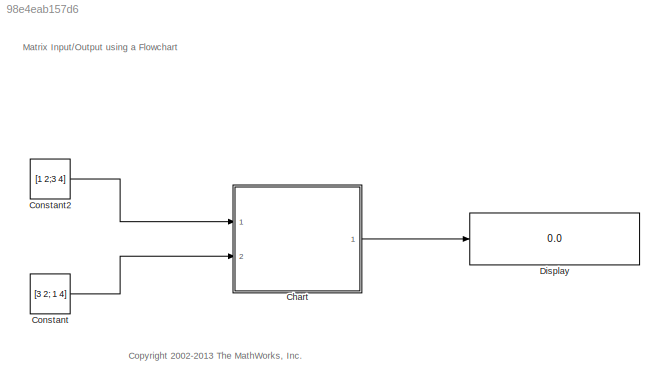
MODEL slx_98e4eab157d6
KIND model
CONFIG AbsTol = auto
CONFIG EnableMultiTasking = on
CONFIG FixedStep = auto
CONFIG MaxStep = 1
CONFIG MinStep = auto
CONFIG RelTol = 1e-3
CONFIG SampleTimeConstraint = Unconstrained
CONFIG Solver = ode45
CONFIG SolverName = ode45
CONFIG StartTime = 0.0
CONFIG StopTime = 1
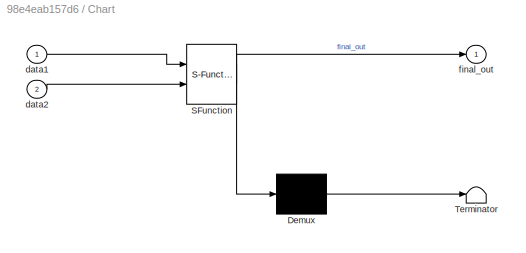
BLOCK [SubSystem] Chart
  ErrorFcn = Stateflow.Translate.translate
  PermitHierarchicalResolution = ExplicitOnly
  Ports = [2, 1]
  RequestExecContextInheritance = off
  SFBlockType = Chart
  TreatAsAtomicUnit = on
  Variant = off
BLOCK [Demux] Chart/ Demux 
  Outputs = 1
  Ports = [1, 1]
BLOCK [S-Function] Chart/ SFunction 
  EnableBusSupport = off
  FunctionName = sf_sfun
  PortCounts = [2 2]
  Ports = [2, 2]
  SFcnIsStateOwnerBlock = off
  SFunctionDeploymentMode = off
  Tag = Stateflow S-Function sf_matrix 1
BLOCK [Terminator] Chart/ Terminator 
BLOCK [Inport] Chart/data1
  IconDisplay = Port number
BLOCK [Inport] Chart/data2
  IconDisplay = Port number
  Port = 2
BLOCK [Outport] Chart/final_out
  IconDisplay = Port number
BLOCK [Constant] Constant
  Value = [3 2; 1 4]
  VectorParams1D = off
BLOCK [Constant] Constant2
  Value = [1 2;3 4]
  VectorParams1D = off
BLOCK [Display] Display
  Decimation = 1
  Ports = [1]
ANNOTATION (root): <copyright redacted>
ANNOTATION (root): Matrix Input/Output using a Flowchart
LINE Chart:1 -> Display:1
LINE Constant2:1 -> Chart:1
LINE Constant:1 -> Chart:2
CHART Chart states=1 transitions=4
  STATE_LABEL 'Equivalent C-Code:\n\nfor(i=0;i<2;i++)\n   for(j=0;j<2;j++)\n       {\n         int final_out[2][2];\n         final_out[i][j]=(data1[i][0]*data2[0][j])+(data1[i][1]+data2[1][j]);\n       }'
